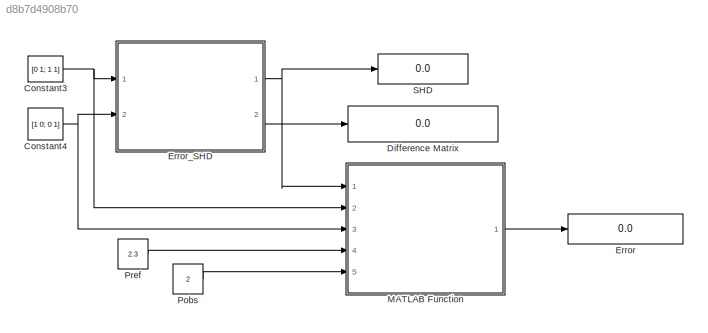
MODEL slx_d8b7d4908b70
KIND model
CONFIG AbsTol = auto
CONFIG EnableMultiTasking = off
CONFIG FixedStep = auto
CONFIG MaxStep = auto
CONFIG MinStep = auto
CONFIG RelTol = 1e-3
CONFIG SampleTimeConstraint = Unconstrained
CONFIG SolverName = VariableStepAuto
CONFIG StartTime = 0.0
CONFIG StopTime = 30
BLOCK [Constant] Constant3
  Value = [0 1; 1 1]
BLOCK [Constant] Constant4
  Value = [1 0; 0 1]
BLOCK [Display] Difference Matrix
  Decimation = 1
  Ports = [1]
BLOCK [Display] Error
  Decimation = 1
  Format = long
  Ports = [1]
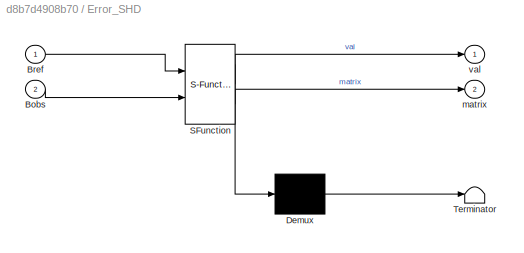
BLOCK [SubSystem] Error_SHD
  ErrorFcn = Stateflow.Translate.translate
  PermitHierarchicalResolution = ExplicitOnly
  Ports = [2, 2]
  RequestExecContextInheritance = off
  SFBlockType = MATLAB Function
  TreatAsAtomicUnit = on
BLOCK [Demux] Error_SHD/ Demux 
  Outputs = 1
  Ports = [1, 1]
BLOCK [S-Function] Error_SHD/ SFunction 
  EnableBusSupport = on
  FunctionName = sf_sfun
  PortCounts = [2 3]
  Ports = [2, 3]
  SFcnIsStateOwnerBlock = off
  SFunctionDeploymentMode = off
  Tag = Stateflow S-Function 3
BLOCK [Terminator] Error_SHD/ Terminator 
BLOCK [Inport] Error_SHD/Bobs
  Port = 2
BLOCK [Inport] Error_SHD/Bref
BLOCK [Outport] Error_SHD/matrix
  Port = 2
BLOCK [Outport] Error_SHD/val
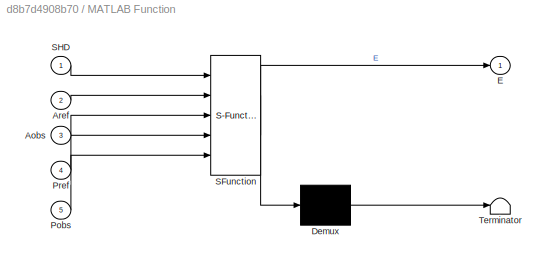
BLOCK [SubSystem] MATLAB Function
  ErrorFcn = Stateflow.Translate.translate
  PermitHierarchicalResolution = ExplicitOnly
  Ports = [5, 1]
  RequestExecContextInheritance = off
  SFBlockType = MATLAB Function
  TreatAsAtomicUnit = on
BLOCK [Demux] MATLAB Function/ Demux 
  Outputs = 1
  Ports = [1, 1]
BLOCK [S-Function] MATLAB Function/ SFunction 
  EnableBusSupport = on
  FunctionName = sf_sfun
  PortCounts = [5 2]
  Ports = [5, 2]
  SFcnIsStateOwnerBlock = off
  SFunctionDeploymentMode = off
  Tag = Stateflow S-Function 6
BLOCK [Terminator] MATLAB Function/ Terminator 
BLOCK [Inport] MATLAB Function/Aobs
  Port = 3
BLOCK [Inport] MATLAB Function/Aref
  Port = 2
BLOCK [Outport] MATLAB Function/E
BLOCK [Inport] MATLAB Function/Pobs
  Port = 5
BLOCK [Inport] MATLAB Function/Pref
  Port = 4
BLOCK [Inport] MATLAB Function/SHD
BLOCK [Constant] Pobs
  Value = 2
BLOCK [Constant] Pref
  Value = 2.3
BLOCK [Display] SHD
  Decimation = 1
  Ports = [1]
NET Constant3:1 -> Error_SHD:1, MATLAB Function:2
NET Constant4:1 -> Error_SHD:2, MATLAB Function:3
NET Error_SHD:1 -> MATLAB Function:1, SHD:1
LINE Error_SHD:2 -> Difference Matrix:1
LINE MATLAB Function:1 -> Error:1
LINE Pobs:1 -> MATLAB Function:5
LINE Pref:1 -> MATLAB Function:4
note: NET lines group one-source signal fan-out (src -> all destinations, sorted); 1:1 wires keep LINE
CHART Error_SHD states=1 transitions=1
  STATE_LABEL 'eML_blk_kernel()'
  STATE_LABEL 'SCRIPT:\nfunction [val,matrix]=SHD(Bref,Bobs)\n\nval = sum(sum(xor(Bref,Bobs)));\nmatrix = xor(Bref,Bobs);\n\n'
CHART MATLAB Function states=1 transitions=1
  STATE_LABEL 'eML_blk_kernel()'
  STATE_LABEL 'SCRIPT:\nfunction E  = ErrorFunction(SHD, Aref,Aobs,Pref,Pobs)\n    w1 = 0.4; %Use whatever values you like most. Threshold \n\n    w2 = 1 - w1;\n\n    assert(all(size(Aref) == size(Aobs)));\n\n    assert(size(Aref,1) == size(Aref,2));\n\n    nChannels = size(Aref,1);\n\n    AfullyConnected = ones(nChannels);\n\n    AfullyDisconnected = zeros(nChannels);\n\n    maxDiffSHD = sum(sum(xor(AfullyConnected,AfullyDisco...<+153ch>'
CHART  states=0 transitions=0
CHART  states=0 transitions=0
